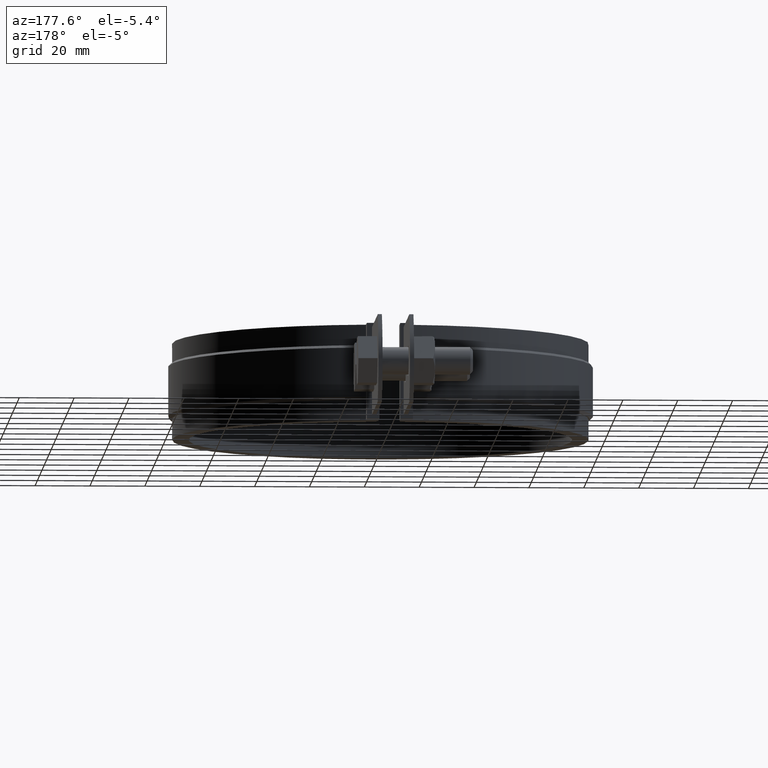
[diagram: clean part render]
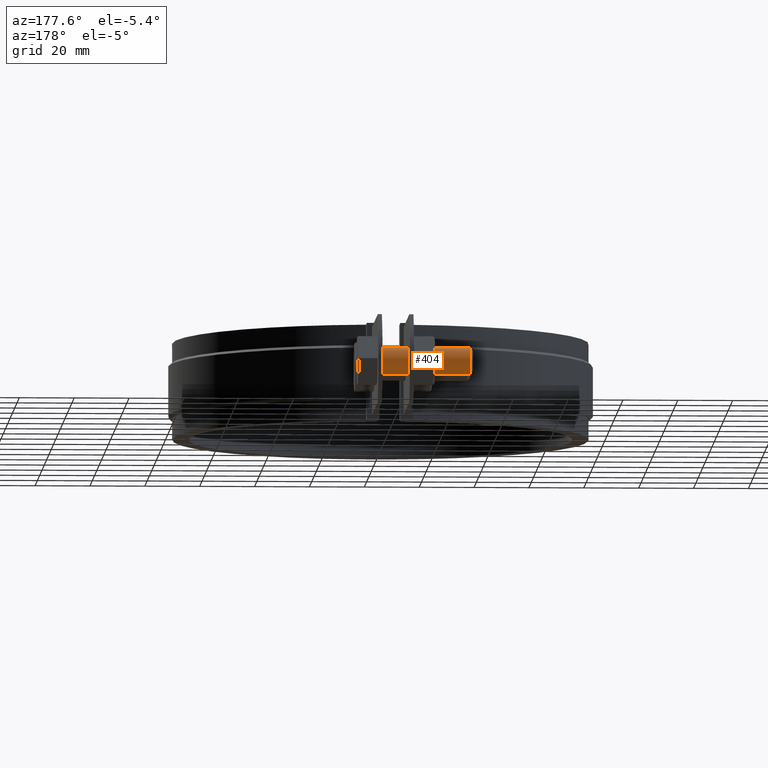
[diagram: same view with one face highlighted and labeled with its STEP entity id]
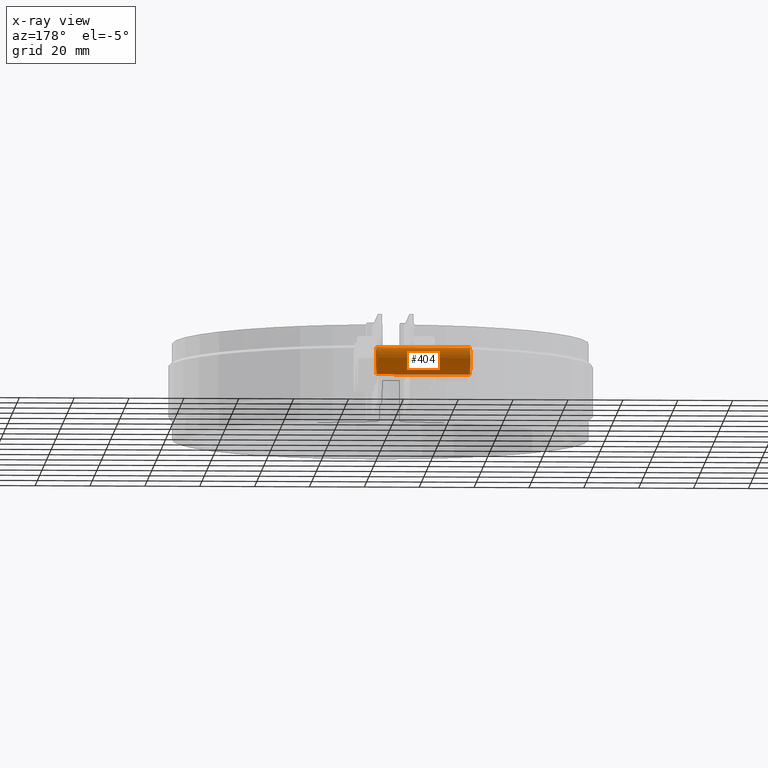
[diagram: x-ray of the same camera — body ghosted, the highlighted face saturated]
A machine part, auxiliary view. The second image highlights one B-rep face of the part: STEP entity #404.
The next image is the same camera in x-ray: the body ghosted, the highlighted face saturated — about 0% of this face is hidden behind the body in this view.
In plain terms, the highlighted cylindrical surface (bore or boss wall) has radius 5 mm, axis along (-1, -0, -0).
Its self-contained STEP definition (entity closure, byte-faithful):
#404 = ADVANCED_FACE( '', ( #665, #666 ), #667, .T. );
#665 = FACE_OUTER_BOUND( '', #1751, .T. );
#666 = FACE_OUTER_BOUND( '', #1752, .T. );
#667 = CYLINDRICAL_SURFACE( '', #1753, 4.99999999999991 );
#1751 = EDGE_LOOP( '', ( #4136 ) );
#1752 = EDGE_LOOP( '', ( #4137 ) );
#1753 = AXIS2_PLACEMENT_3D( '', #4138, #4139, #4140 );
#4136 = ORIENTED_EDGE( '', *, *, #4860, .T. );
#4137 = ORIENTED_EDGE( '', *, *, #4854, .F. );
#4138 = CARTESIAN_POINT( '', ( -28.4999999999987, 121.297141712793, -16.0000000000000 ) );
#4139 = DIRECTION( '', ( -1.00000000000000, -6.02334540269725E-017, -3.42113882891807E-049 ) );
#4140 = DIRECTION( '', ( 3.42113882891807E-049, 0.000000000000000, -1.00000000000000 ) );
#4854 = EDGE_CURVE( '', #5406, #5406, #5407, .T. );
#4860 = EDGE_CURVE( '', #5416, #5416, #5417, .T. );
#5406 = VERTEX_POINT( '', #7962 );
#5407 = CIRCLE( '', #7963, 4.99999999999991 );
#5416 = VERTEX_POINT( '', #7977 );
#5417 = CIRCLE( '', #7978, 4.99999999999991 );
#7962 = CARTESIAN_POINT( '', ( 6.50000000000000, 121.297141712793, -20.9999999999999 ) );
#7963 = AXIS2_PLACEMENT_3D( '', #8730, #8731, #8732 );
#7977 = CARTESIAN_POINT( '', ( -27.4999999999987, 121.297141712793, -20.9999999999999 ) );
#7978 = AXIS2_PLACEMENT_3D( '', #8738, #8739, #8740 );
#8730 = CARTESIAN_POINT( '', ( 6.50000000000000, 121.297141712793, -16.0000000000000 ) );
#8731 = DIRECTION( '', ( 1.00000000000000, 6.02334540269725E-017, 3.42113882891807E-049 ) );
#8732 = DIRECTION( '', ( 3.42113882891807E-049, 0.000000000000000, -1.00000000000000 ) );
#8738 = CARTESIAN_POINT( '', ( -27.4999999999987, 121.297141712793, -16.0000000000000 ) );
#8739 = DIRECTION( '', ( 1.00000000000000, 6.02334540269725E-017, 3.42113882891807E-049 ) );
#8740 = DIRECTION( '', ( 3.42113882891807E-049, 0.000000000000000, -1.00000000000000 ) );